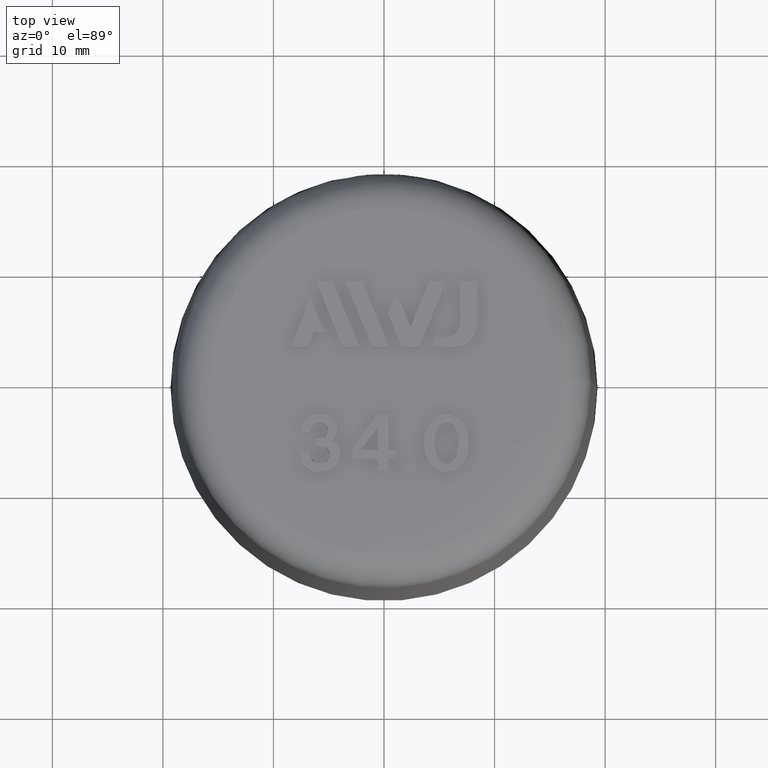
[diagram: clean part render]
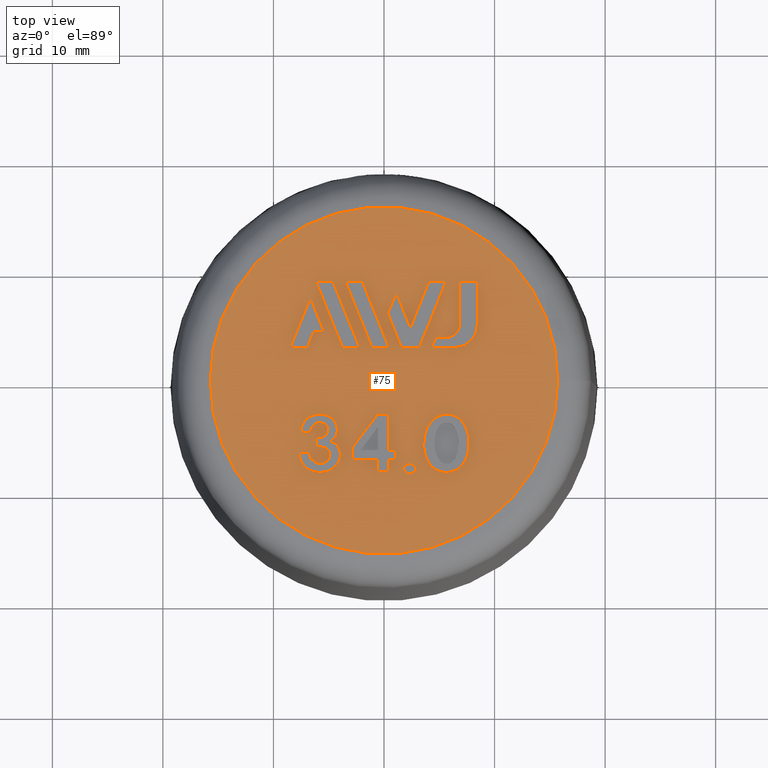
[diagram: same view with one face highlighted and labeled with its STEP entity id]
A machine part, top view. The second image highlights one B-rep face of the part: STEP entity #75.
In plain terms, the highlighted planar face has unit normal (0, 0, -1).
Its self-contained STEP definition (entity closure, byte-faithful):
#75 = ADVANCED_FACE( '', ( #147, #148, #149, #150, #151, #152, #153, #154, #155, #156 ), #157, .F. );
#147 = FACE_BOUND( '', #308, .T. );
#148 = FACE_BOUND( '', #309, .T. );
#149 = FACE_BOUND( '', #310, .T. );
#150 = FACE_BOUND( '', #311, .T. );
#151 = FACE_OUTER_BOUND( '', #312, .T. );
#152 = FACE_BOUND( '', #313, .T. );
#153 = FACE_BOUND( '', #314, .T. );
#154 = FACE_BOUND( '', #315, .T. );
#155 = FACE_BOUND( '', #316, .T. );
#156 = FACE_BOUND( '', #317, .T. );
#157 = PLANE( '', #318 );
#308 = EDGE_LOOP( '', ( #477 ) );
#309 = EDGE_LOOP( '', ( #478, #479, #480, #481, #482, #483, #484, #485 ) );
#310 = EDGE_LOOP( '', ( #486, #487, #488, #489 ) );
#311 = EDGE_LOOP( '', ( #490, #491, #492, #493, #494, #495, #496 ) );
#312 = EDGE_LOOP( '', ( #497 ) );
#313 = EDGE_LOOP( '', ( #498, #499, #500, #501, #502, #503, #504, #505 ) );
#314 = EDGE_LOOP( '', ( #506, #507, #508, #509 ) );
#315 = EDGE_LOOP( '', ( #510, #511, #512, #513, #514 ) );
#316 = EDGE_LOOP( '', ( #515, #516, #517, #518, #519, #520, #521, #522, #523, #524, #525 ) );
#317 = EDGE_LOOP( '', ( #526 ) );
#318 = AXIS2_PLACEMENT_3D( '', #527, #528, #529 );
#477 = ORIENTED_EDGE( '', *, *, #1094, .T. );
#478 = ORIENTED_EDGE( '', *, *, #1095, .T. );
#479 = ORIENTED_EDGE( '', *, *, #1096, .T. );
#480 = ORIENTED_EDGE( '', *, *, #1097, .T. );
#481 = ORIENTED_EDGE( '', *, *, #1098, .T. );
#482 = ORIENTED_EDGE( '', *, *, #1099, .T. );
#483 = ORIENTED_EDGE( '', *, *, #1100, .T. );
#484 = ORIENTED_EDGE( '', *, *, #1101, .T. );
#485 = ORIENTED_EDGE( '', *, *, #1102, .T. );
#486 = ORIENTED_EDGE( '', *, *, #1103, .F. );
#487 = ORIENTED_EDGE( '', *, *, #1104, .F. );
#488 = ORIENTED_EDGE( '', *, *, #1105, .F. );
#489 = ORIENTED_EDGE( '', *, *, #1106, .F. );
#490 = ORIENTED_EDGE( '', *, *, #1107, .F. );
#491 = ORIENTED_EDGE( '', *, *, #1108, .F. );
#492 = ORIENTED_EDGE( '', *, *, #1109, .F. );
#493 = ORIENTED_EDGE( '', *, *, #1110, .F. );
#494 = ORIENTED_EDGE( '', *, *, #1111, .F. );
#495 = ORIENTED_EDGE( '', *, *, #1112, .F. );
#496 = ORIENTED_EDGE( '', *, *, #1113, .F. );
#497 = ORIENTED_EDGE( '', *, *, #1114, .T. );
#498 = ORIENTED_EDGE( '', *, *, #1115, .F. );
#499 = ORIENTED_EDGE( '', *, *, #1116, .F. );
#500 = ORIENTED_EDGE( '', *, *, #1117, .F. );
#501 = ORIENTED_EDGE( '', *, *, #1118, .F. );
#502 = ORIENTED_EDGE( '', *, *, #1119, .F. );
#503 = ORIENTED_EDGE( '', *, *, #1120, .F. );
#504 = ORIENTED_EDGE( '', *, *, #1121, .F. );
#505 = ORIENTED_EDGE( '', *, *, #1122, .F. );
#506 = ORIENTED_EDGE( '', *, *, #1123, .F. );
#507 = ORIENTED_EDGE( '', *, *, #1124, .F. );
#508 = ORIENTED_EDGE( '', *, *, #1125, .F. );
#509 = ORIENTED_EDGE( '', *, *, #1126, .F. );
#510 = ORIENTED_EDGE( '', *, *, #1127, .F. );
#511 = ORIENTED_EDGE( '', *, *, #1128, .F. );
#512 = ORIENTED_EDGE( '', *, *, #1129, .F. );
#513 = ORIENTED_EDGE( '', *, *, #1130, .F. );
#514 = ORIENTED_EDGE( '', *, *, #1131, .F. );
#515 = ORIENTED_EDGE( '', *, *, #1132, .T. );
#516 = ORIENTED_EDGE( '', *, *, #1133, .T. );
#517 = ORIENTED_EDGE( '', *, *, #1134, .T. );
#518 = ORIENTED_EDGE( '', *, *, #1135, .T. );
#519 = ORIENTED_EDGE( '', *, *, #1136, .T. );
#520 = ORIENTED_EDGE( '', *, *, #1137, .T. );
#521 = ORIENTED_EDGE( '', *, *, #1138, .T. );
#522 = ORIENTED_EDGE( '', *, *, #1139, .T. );
#523 = ORIENTED_EDGE( '', *, *, #1140, .T. );
#524 = ORIENTED_EDGE( '', *, *, #1141, .T. );
#525 = ORIENTED_EDGE( '', *, *, #1142, .T. );
#526 = ORIENTED_EDGE( '', *, *, #1143, .T. );
#527 = CARTESIAN_POINT( '', ( -2.26552175457140E-015, 15.7118391006405, 37.0000000000000 ) );
#528 = DIRECTION( '', ( 6.12303176911189E-017, 0.000000000000000, -1.00000000000000 ) );
#529 = DIRECTION( '', ( -1.00000000000000, 0.000000000000000, -6.12303176911189E-017 ) );
#1094 = EDGE_CURVE( '', #1256, #1256, #1257, .T. );
#1095 = EDGE_CURVE( '', #1258, #1259, #1260, .T. );
#1096 = EDGE_CURVE( '', #1259, #1261, #1262, .T. );
#1097 = EDGE_CURVE( '', #1261, #1263, #1264, .T. );
#1098 = EDGE_CURVE( '', #1263, #1265, #1266, .T. );
#1099 = EDGE_CURVE( '', #1265, #1267, #1268, .T. );
#1100 = EDGE_CURVE( '', #1267, #1269, #1270, .T. );
#1101 = EDGE_CURVE( '', #1269, #1271, #1272, .T. );
#1102 = EDGE_CURVE( '', #1271, #1258, #1273, .T. );
#1103 = EDGE_CURVE( '', #1274, #1275, #1276, .T. );
#1104 = EDGE_CURVE( '', #1277, #1274, #1278, .T. );
#1105 = EDGE_CURVE( '', #1279, #1277, #1280, .T. );
#1106 = EDGE_CURVE( '', #1275, #1279, #1281, .T. );
#1107 = EDGE_CURVE( '', #1282, #1283, #1284, .T. );
#1108 = EDGE_CURVE( '', #1285, #1282, #1286, .T. );
#1109 = EDGE_CURVE( '', #1287, #1285, #1288, .T. );
#1110 = EDGE_CURVE( '', #1289, #1287, #1290, .T. );
#1111 = EDGE_CURVE( '', #1291, #1289, #1292, .T. );
#1112 = EDGE_CURVE( '', #1293, #1291, #1294, .T. );
#1113 = EDGE_CURVE( '', #1283, #1293, #1295, .T. );
#1114 = EDGE_CURVE( '', #1296, #1296, #1297, .T. );
#1115 = EDGE_CURVE( '', #1298, #1299, #1300, .T. );
#1116 = EDGE_CURVE( '', #1301, #1298, #1302, .T. );
#1117 = EDGE_CURVE( '', #1303, #1301, #1304, .T. );
#1118 = EDGE_CURVE( '', #1305, #1303, #1306, .T. );
#1119 = EDGE_CURVE( '', #1307, #1305, #1308, .T. );
#1120 = EDGE_CURVE( '', #1309, #1307, #1310, .T. );
#1121 = EDGE_CURVE( '', #1311, #1309, #1312, .T. );
#1122 = EDGE_CURVE( '', #1299, #1311, #1313, .T. );
#1123 = EDGE_CURVE( '', #1314, #1315, #1316, .T. );
#1124 = EDGE_CURVE( '', #1317, #1314, #1318, .T. );
#1125 = EDGE_CURVE( '', #1319, #1317, #1320, .T. );
#1126 = EDGE_CURVE( '', #1315, #1319, #1321, .T. );
#1127 = EDGE_CURVE( '', #1322, #1323, #1324, .T. );
#1128 = EDGE_CURVE( '', #1325, #1322, #1326, .T. );
#1129 = EDGE_CURVE( '', #1327, #1325, #1328, .T. );
#1130 = EDGE_CURVE( '', #1329, #1327, #1330, .T. );
#1131 = EDGE_CURVE( '', #1323, #1329, #1331, .T. );
#1132 = EDGE_CURVE( '', #1332, #1333, #1334, .T. );
#1133 = EDGE_CURVE( '', #1333, #1335, #1336, .T. );
#1134 = EDGE_CURVE( '', #1335, #1337, #1338, .T. );
#1135 = EDGE_CURVE( '', #1337, #1339, #1340, .T. );
#1136 = EDGE_CURVE( '', #1339, #1341, #1342, .T. );
#1137 = EDGE_CURVE( '', #1341, #1343, #1344, .T. );
#1138 = EDGE_CURVE( '', #1343, #1345, #1346, .T. );
#1139 = EDGE_CURVE( '', #1345, #1347, #1348, .T. );
#1140 = EDGE_CURVE( '', #1347, #1349, #1350, .T. );
#1141 = EDGE_CURVE( '', #1349, #1351, #1352, .T. );
#1142 = EDGE_CURVE( '', #1351, #1332, #1353, .T. );
#1143 = EDGE_CURVE( '', #1354, #1354, #1355, .T. );
#1256 = VERTEX_POINT( '', #1530 );
#1257 = B_SPLINE_CURVE_WITH_KNOTS( '', 2, ( #1531, #1532, #1533, #1534, #1535, #1536, #1537, #1538, #1539, #1540, #1541, #1542, #1543, #1544, #1545, #1546, #1547 ), .UNSPECIFIED., .T., .F., ( 3, 2, 2, 2, 2, 2, 2, 2, 3 ), ( 0.000000000000000, 1.00000000000000, 2.00000000000000, 3.00000000000000, 4.00000000000000, 5.00000000000000, 6.00000000000000, 7.00000000000000, 8.00000000000000 ), .UNSPECIFIED. );
#1258 = VERTEX_POINT( '', #1548 );
#1259 = VERTEX_POINT( '', #1549 );
#1260 = B_SPLINE_CURVE_WITH_KNOTS( '', 2, ( #1550, #1551, #1552, #1553, #1554, #1555, #1556, #1557, #1558 ), .UNSPECIFIED., .F., .F., ( 3, 2, 2, 2, 3 ), ( 19.0000000000000, 20.0000000000000, 21.0000000000000, 22.0000000000000, 23.0000000000000 ), .UNSPECIFIED. );
#1261 = VERTEX_POINT( '', #1559 );
#1262 = B_SPLINE_CURVE_WITH_KNOTS( '', 2, ( #1560, #1561, #1562 ), .UNSPECIFIED., .F., .F., ( 3, 3 ), ( 0.000000000000000, 1.00000000000000 ), .UNSPECIFIED. );
#1263 = VERTEX_POINT( '', #1563 );
#1264 = B_SPLINE_CURVE_WITH_KNOTS( '', 2, ( #1564, #1565, #1566 ), .UNSPECIFIED., .F., .F., ( 3, 3 ), ( 1.00000000000000, 2.00000000000000 ), .UNSPECIFIED. );
#1265 = VERTEX_POINT( '', #1567 );
#1266 = B_SPLINE_CURVE_WITH_KNOTS( '', 2, ( #1568, #1569, #1570, #1571, #1572, #1573, #1574, #1575, #1576, #1577, #1578 ), .UNSPECIFIED., .F., .F., ( 3, 2, 2, 2, 2, 3 ), ( 2.00000000000000, 3.00000000000000, 4.00000000000000, 5.00000000000000, 6.00000000000000, 7.00000000000000 ), .UNSPECIFIED. );
#1267 = VERTEX_POINT( '', #1579 );
#1268 = B_SPLINE_CURVE_WITH_KNOTS( '', 2, ( #1580, #1581, #1582 ), .UNSPECIFIED., .F., .F., ( 3, 3 ), ( 7.00000000000000, 8.00000000000000 ), .UNSPECIFIED. );
#1269 = VERTEX_POINT( '', #1583 );
#1270 = B_SPLINE_CURVE_WITH_KNOTS( '', 2, ( #1584, #1585, #1586, #1587, #1588, #1589, #1590, #1591, #1592, #1593, #1594 ), .UNSPECIFIED., .F., .F., ( 3, 2, 2, 2, 2, 3 ), ( 8.00000000000000, 9.00000000000000, 10.0000000000000, 11.0000000000000, 12.0000000000000, 13.0000000000000 ), .UNSPECIFIED. );
#1271 = VERTEX_POINT( '', #1595 );
#1272 = B_SPLINE_CURVE_WITH_KNOTS( '', 2, ( #1596, #1597, #1598 ), .UNSPECIFIED., .F., .F., ( 3, 3 ), ( 13.0000000000000, 14.0000000000000 ), .UNSPECIFIED. );
#1273 = B_SPLINE_CURVE_WITH_KNOTS( '', 2, ( #1599, #1600, #1601, #1602, #1603, #1604, #1605, #1606, #1607, #1608, #1609 ), .UNSPECIFIED., .F., .F., ( 3, 2, 2, 2, 2, 3 ), ( 14.0000000000000, 15.0000000000000, 16.0000000000000, 17.0000000000000, 18.0000000000000, 19.0000000000000 ), .UNSPECIFIED. );
#1274 = VERTEX_POINT( '', #1610 );
#1275 = VERTEX_POINT( '', #1611 );
#1276 = LINE( '', #1612, #1613 );
#1277 = VERTEX_POINT( '', #1614 );
#1278 = LINE( '', #1615, #1616 );
#1279 = VERTEX_POINT( '', #1617 );
#1280 = LINE( '', #1618, #1619 );
#1281 = LINE( '', #1620, #1621 );
#1282 = VERTEX_POINT( '', #1622 );
#1283 = VERTEX_POINT( '', #1623 );
#1284 = LINE( '', #1624, #1625 );
#1285 = VERTEX_POINT( '', #1626 );
#1286 = LINE( '', #1627, #1628 );
#1287 = VERTEX_POINT( '', #1629 );
#1288 = LINE( '', #1630, #1631 );
#1289 = VERTEX_POINT( '', #1632 );
#1290 = LINE( '', #1633, #1634 );
#1291 = VERTEX_POINT( '', #1635 );
#1292 = LINE( '', #1636, #1637 );
#1293 = VERTEX_POINT( '', #1638 );
#1294 = LINE( '', #1639, #1640 );
#1295 = LINE( '', #1641, #1642 );
#1296 = VERTEX_POINT( '', #1643 );
#1297 = CIRCLE( '', #1644, 15.7118391006405 );
#1298 = VERTEX_POINT( '', #1645 );
#1299 = VERTEX_POINT( '', #1646 );
#1300 = LINE( '', #1647, #1648 );
#1301 = VERTEX_POINT( '', #1649 );
#1302 = LINE( '', #1650, #1651 );
#1303 = VERTEX_POINT( '', #1652 );
#1304 = LINE( '', #1653, #1654 );
#1305 = VERTEX_POINT( '', #1655 );
#1306 = CIRCLE( '', #1656, 2.00100000000000 );
#1307 = VERTEX_POINT( '', #1657 );
#1308 = LINE( '', #1658, #1659 );
#1309 = VERTEX_POINT( '', #1660 );
#1310 = LINE( '', #1661, #1662 );
#1311 = VERTEX_POINT( '', #1663 );
#1312 = LINE( '', #1664, #1665 );
#1313 = CIRCLE( '', #1666, 1.33400000000000 );
#1314 = VERTEX_POINT( '', #1667 );
#1315 = VERTEX_POINT( '', #1668 );
#1316 = LINE( '', #1669, #1670 );
#1317 = VERTEX_POINT( '', #1671 );
#1318 = LINE( '', #1672, #1673 );
#1319 = VERTEX_POINT( '', #1674 );
#1320 = LINE( '', #1675, #1676 );
#1321 = LINE( '', #1677, #1678 );
#1322 = VERTEX_POINT( '', #1679 );
#1323 = VERTEX_POINT( '', #1680 );
#1324 = LINE( '', #1681, #1682 );
#1325 = VERTEX_POINT( '', #1683 );
#1326 = LINE( '', #1684, #1685 );
#1327 = VERTEX_POINT( '', #1686 );
#1328 = LINE( '', #1687, #1688 );
#1329 = VERTEX_POINT( '', #1689 );
#1330 = LINE( '', #1690, #1691 );
#1331 = LINE( '', #1692, #1693 );
#1332 = VERTEX_POINT( '', #1694 );
#1333 = VERTEX_POINT( '', #1695 );
#1334 = B_SPLINE_CURVE_WITH_KNOTS( '', 2, ( #1696, #1697, #1698 ), .UNSPECIFIED., .F., .F., ( 3, 3 ), ( 10.0000000000000, 11.0000000000000 ), .UNSPECIFIED. );
#1335 = VERTEX_POINT( '', #1699 );
#1336 = B_SPLINE_CURVE_WITH_KNOTS( '', 2, ( #1700, #1701, #1702 ), .UNSPECIFIED., .F., .F., ( 3, 3 ), ( 0.000000000000000, 1.00000000000000 ), .UNSPECIFIED. );
#1337 = VERTEX_POINT( '', #1703 );
#1338 = B_SPLINE_CURVE_WITH_KNOTS( '', 2, ( #1704, #1705, #1706 ), .UNSPECIFIED., .F., .F., ( 3, 3 ), ( 1.00000000000000, 2.00000000000000 ), .UNSPECIFIED. );
#1339 = VERTEX_POINT( '', #1707 );
#1340 = B_SPLINE_CURVE_WITH_KNOTS( '', 2, ( #1708, #1709, #1710 ), .UNSPECIFIED., .F., .F., ( 3, 3 ), ( 2.00000000000000, 3.00000000000000 ), .UNSPECIFIED. );
#1341 = VERTEX_POINT( '', #1711 );
#1342 = B_SPLINE_CURVE_WITH_KNOTS( '', 2, ( #1712, #1713, #1714 ), .UNSPECIFIED., .F., .F., ( 3, 3 ), ( 3.00000000000000, 4.00000000000000 ), .UNSPECIFIED. );
#1343 = VERTEX_POINT( '', #1715 );
#1344 = B_SPLINE_CURVE_WITH_KNOTS( '', 2, ( #1716, #1717, #1718 ), .UNSPECIFIED., .F., .F., ( 3, 3 ), ( 4.00000000000000, 5.00000000000000 ), .UNSPECIFIED. );
#1345 = VERTEX_POINT( '', #1719 );
#1346 = B_SPLINE_CURVE_WITH_KNOTS( '', 2, ( #1720, #1721, #1722 ), .UNSPECIFIED., .F., .F., ( 3, 3 ), ( 5.00000000000000, 6.00000000000000 ), .UNSPECIFIED. );
#1347 = VERTEX_POINT( '', #1723 );
#1348 = B_SPLINE_CURVE_WITH_KNOTS( '', 2, ( #1724, #1725, #1726 ), .UNSPECIFIED., .F., .F., ( 3, 3 ), ( 6.00000000000000, 7.00000000000000 ), .UNSPECIFIED. );
#1349 = VERTEX_POINT( '', #1727 );
#1350 = B_SPLINE_CURVE_WITH_KNOTS( '', 2, ( #1728, #1729, #1730 ), .UNSPECIFIED., .F., .F., ( 3, 3 ), ( 7.00000000000000, 8.00000000000000 ), .UNSPECIFIED. );
#1351 = VERTEX_POINT( '', #1731 );
#1352 = B_SPLINE_CURVE_WITH_KNOTS( '', 2, ( #1732, #1733, #1734 ), .UNSPECIFIED., .F., .F., ( 3, 3 ), ( 8.00000000000000, 9.00000000000000 ), .UNSPECIFIED. );
#1353 = B_SPLINE_CURVE_WITH_KNOTS( '', 2, ( #1735, #1736, #1737 ), .UNSPECIFIED., .F., .F., ( 3, 3 ), ( 9.00000000000000, 10.0000000000000 ), .UNSPECIFIED. );
#1354 = VERTEX_POINT( '', #1738 );
#1355 = B_SPLINE_CURVE_WITH_KNOTS( '', 2, ( #1739, #1740, #1741, #1742, #1743, #1744, #1745, #1746, #1747, #1748, #1749, #1750, #1751, #1752, #1753, #1754, #1755 ), .UNSPECIFIED., .T., .F., ( 3, 2, 2, 2, 2, 2, 2, 2, 3 ), ( 0.000000000000000, 1.00000000000000, 2.00000000000000, 3.00000000000000, 4.00000000000000, 5.00000000000000, 6.00000000000000, 7.00000000000000, 8.00000000000000 ), .UNSPECIFIED. );
#1530 = CARTESIAN_POINT( '', ( 4.23722462830603, -7.69286845880826, 37.0000000000000 ) );
#1531 = CARTESIAN_POINT( '', ( 4.23722462830603, -7.69286845880826, 37.0000000000000 ) );
#1532 = CARTESIAN_POINT( '', ( 3.63914062500000, -7.04111025007733, 37.0000000000000 ) );
#1533 = CARTESIAN_POINT( '', ( 3.59743015051240, -5.94041717332107, 37.0000000000000 ) );
#1534 = CARTESIAN_POINT( '', ( 3.54914062500000, -4.66611025007733, 37.0000000000000 ) );
#1535 = CARTESIAN_POINT( '', ( 4.17194062500000, -3.83571025007733, 37.0000000000000 ) );
#1536 = CARTESIAN_POINT( '', ( 4.74914062500000, -3.06611025007733, 37.0000000000000 ) );
#1537 = CARTESIAN_POINT( '', ( 5.67914062500000, -3.06611025007733, 37.0000000000000 ) );
#1538 = CARTESIAN_POINT( '', ( 6.54914062500000, -3.06611025007733, 37.0000000000000 ) );
#1539 = CARTESIAN_POINT( '', ( 7.07689023989987, -3.70136441616051, 37.0000000000000 ) );
#1540 = CARTESIAN_POINT( '', ( 7.62914062500000, -4.36611025007733, 37.0000000000000 ) );
#1541 = CARTESIAN_POINT( '', ( 7.68465443793628, -5.46482113110792, 37.0000000000000 ) );
#1542 = CARTESIAN_POINT( '', ( 7.74914062500000, -6.74111025007733, 37.0000000000000 ) );
#1543 = CARTESIAN_POINT( '', ( 7.15282289748817, -7.54384565249711, 37.0000000000000 ) );
#1544 = CARTESIAN_POINT( '', ( 6.57914062500000, -8.31611025007733, 37.0000000000000 ) );
#1545 = CARTESIAN_POINT( '', ( 5.67914062500000, -8.31611025007733, 37.0000000000000 ) );
#1546 = CARTESIAN_POINT( '', ( 4.80914062500000, -8.31611025007733, 37.0000000000000 ) );
#1547 = CARTESIAN_POINT( '', ( 4.23722462830603, -7.69286845880826, 37.0000000000000 ) );
#1548 = CARTESIAN_POINT( '', ( -4.85085937500000, -5.51611025007733, 37.0000000000000 ) );
#1549 = CARTESIAN_POINT( '', ( -7.04786888497845, -7.89930030910478, 37.0000000000000 ) );
#1550 = CARTESIAN_POINT( '', ( -4.85085937500000, -5.51611025007733, 37.0000000000000 ) );
#1551 = CARTESIAN_POINT( '', ( -4.10085937500000, -5.66611025007733, 37.0000000000000 ) );
#1552 = CARTESIAN_POINT( '', ( -3.96525875097504, -6.51361415023334, 37.0000000000000 ) );
#1553 = CARTESIAN_POINT( '', ( -3.86085937500000, -7.16611025007733, 37.0000000000000 ) );
#1554 = CARTESIAN_POINT( '', ( -4.36659133376289, -7.72000715729382, 37.0000000000000 ) );
#1555 = CARTESIAN_POINT( '', ( -4.91085937500000, -8.31611025007733, 37.0000000000000 ) );
#1556 = CARTESIAN_POINT( '', ( -5.75085937500000, -8.31611025007733, 37.0000000000000 ) );
#1557 = CARTESIAN_POINT( '', ( -6.56085937500000, -8.31611025007733, 37.0000000000000 ) );
#1558 = CARTESIAN_POINT( '', ( -7.04786888497845, -7.89930030910478, 37.0000000000000 ) );
#1559 = CARTESIAN_POINT( '', ( -7.67085937500000, -6.49111025007733, 37.0000000000000 ) );
#1560 = CARTESIAN_POINT( '', ( -7.04786888497845, -7.89930030910478, 37.0000000000000 ) );
#1561 = CARTESIAN_POINT( '', ( -7.67085937500000, -7.36611025007733, 37.0000000000000 ) );
#1562 = CARTESIAN_POINT( '', ( -7.67085937500000, -6.49111025007733, 37.0000000000000 ) );
#1563 = CARTESIAN_POINT( '', ( -6.77085937500000, -6.49111025007733, 37.0000000000000 ) );
#1564 = CARTESIAN_POINT( '', ( -7.67085937500000, -6.49111025007733, 37.0000000000000 ) );
#1565 = CARTESIAN_POINT( '', ( -7.22085937500000, -6.49111025007733, 37.0000000000000 ) );
#1566 = CARTESIAN_POINT( '', ( -6.77085937500000, -6.49111025007733, 37.0000000000000 ) );
#1567 = CARTESIAN_POINT( '', ( -6.14085937500000, -5.99111025007733, 37.0000000000000 ) );
#1568 = CARTESIAN_POINT( '', ( -6.77085937500000, -6.49111025007733, 37.0000000000000 ) );
#1569 = CARTESIAN_POINT( '', ( -6.68085937500000, -7.21611025007733, 37.0000000000000 ) );
#1570 = CARTESIAN_POINT( '', ( -6.22851768312762, -7.41066581647405, 37.0000000000000 ) );
#1571 = CARTESIAN_POINT( '', ( -5.75085937500000, -7.61611025007733, 37.0000000000000 ) );
#1572 = CARTESIAN_POINT( '', ( -5.39196218102867, -7.43887706786927, 37.0000000000000 ) );
#1573 = CARTESIAN_POINT( '', ( -4.94085937500000, -7.21611025007733, 37.0000000000000 ) );
#1574 = CARTESIAN_POINT( '', ( -4.90303486368878, -6.81685151956997, 37.0000000000000 ) );
#1575 = CARTESIAN_POINT( '', ( -4.85085937500000, -6.26611025007733, 37.0000000000000 ) );
#1576 = CARTESIAN_POINT( '', ( -5.29936406483642, -6.08735838093962, 37.0000000000000 ) );
#1577 = CARTESIAN_POINT( '', ( -5.54085937500000, -5.99111025007733, 37.0000000000000 ) );
#1578 = CARTESIAN_POINT( '', ( -6.14085937500000, -5.99111025007733, 37.0000000000000 ) );
#1579 = CARTESIAN_POINT( '', ( -6.14085937500000, -5.21611025007733, 37.0000000000000 ) );
#1580 = CARTESIAN_POINT( '', ( -6.14085937500000, -5.99111025007733, 37.0000000000000 ) );
#1581 = CARTESIAN_POINT( '', ( -6.14085937500000, -5.60361025007733, 37.0000000000000 ) );
#1582 = CARTESIAN_POINT( '', ( -6.14085937500000, -5.21611025007733, 37.0000000000000 ) );
#1583 = CARTESIAN_POINT( '', ( -6.71085937500000, -4.71611025007733, 37.0000000000000 ) );
#1584 = CARTESIAN_POINT( '', ( -6.14085937500000, -5.21611025007733, 37.0000000000000 ) );
#1585 = CARTESIAN_POINT( '', ( -5.39085937500000, -5.21611025007733, 37.0000000000000 ) );
#1586 = CARTESIAN_POINT( '', ( -5.18628119046241, -4.86296933629221, 37.0000000000000 ) );
#1587 = CARTESIAN_POINT( '', ( -4.97085937500000, -4.49111025007733, 37.0000000000000 ) );
#1588 = CARTESIAN_POINT( '', ( -5.13934306022073, -4.18477627694873, 37.0000000000000 ) );
#1589 = CARTESIAN_POINT( '', ( -5.30085937500000, -3.89111025007733, 37.0000000000000 ) );
#1590 = CARTESIAN_POINT( '', ( -5.66002197874409, -3.83568392233904, 37.0000000000000 ) );
#1591 = CARTESIAN_POINT( '', ( -6.11085937500000, -3.76611025007733, 37.0000000000000 ) );
#1592 = CARTESIAN_POINT( '', ( -6.38085937500000, -4.04111025007733, 37.0000000000000 ) );
#1593 = CARTESIAN_POINT( '', ( -6.65085937500000, -4.31611025007733, 37.0000000000000 ) );
#1594 = CARTESIAN_POINT( '', ( -6.71085937500000, -4.71611025007733, 37.0000000000000 ) );
#1595 = CARTESIAN_POINT( '', ( -7.52085937500000, -4.71611025007733, 37.0000000000000 ) );
#1596 = CARTESIAN_POINT( '', ( -6.71085937500000, -4.71611025007733, 37.0000000000000 ) );
#1597 = CARTESIAN_POINT( '', ( -7.11585937500000, -4.71611025007733, 37.0000000000000 ) );
#1598 = CARTESIAN_POINT( '', ( -7.52085937500000, -4.71611025007733, 37.0000000000000 ) );
#1599 = CARTESIAN_POINT( '', ( -7.52085937500000, -4.71611025007733, 37.0000000000000 ) );
#1600 = CARTESIAN_POINT( '', ( -7.49085937500000, -3.89111025007733, 37.0000000000000 ) );
#1601 = CARTESIAN_POINT( '', ( -6.98742446417287, -3.45847087358526, 37.0000000000000 ) );
#1602 = CARTESIAN_POINT( '', ( -6.53085937500000, -3.06611025007733, 37.0000000000000 ) );
#1603 = CARTESIAN_POINT( '', ( -5.75085937500000, -3.06611025007733, 37.0000000000000 ) );
#1604 = CARTESIAN_POINT( '', ( -5.15085937500000, -3.06611025007733, 37.0000000000000 ) );
#1605 = CARTESIAN_POINT( '', ( -4.70675399365426, -3.42343641897620, 37.0000000000000 ) );
#1606 = CARTESIAN_POINT( '', ( -4.28085937500000, -3.76611025007733, 37.0000000000000 ) );
#1607 = CARTESIAN_POINT( '', ( -4.23276866752897, -4.31714960651622, 37.0000000000000 ) );
#1608 = CARTESIAN_POINT( '', ( -4.16085937500000, -5.14111025007733, 37.0000000000000 ) );
#1609 = CARTESIAN_POINT( '', ( -4.85085937500000, -5.51611025007733, 37.0000000000000 ) );
#1610 = CARTESIAN_POINT( '', ( -2.21126708100000, 2.99488974992267, 37.0000000000000 ) );
#1611 = CARTESIAN_POINT( '', ( -4.63512173600000, 8.99349822192268, 37.0000000000000 ) );
#1612 = CARTESIAN_POINT( '', ( -2.21126708100000, 2.99488974992267, 37.0000000000000 ) );
#1613 = VECTOR( '', #2147, 1000.00000000000 );
#1614 = CARTESIAN_POINT( '', ( -3.76123767900001, 2.99488974992267, 37.0000000000000 ) );
#1615 = CARTESIAN_POINT( '', ( -3.76123767900000, 2.99488974992267, 37.0000000000000 ) );
#1616 = VECTOR( '', #2148, 1000.00000000000 );
#1617 = CARTESIAN_POINT( '', ( -6.18475149700001, 8.99349822192268, 37.0000000000000 ) );
#1618 = CARTESIAN_POINT( '', ( -6.18475149700001, 8.99349822192268, 37.0000000000000 ) );
#1619 = VECTOR( '', #2149, 1000.00000000000 );
#1620 = CARTESIAN_POINT( '', ( -4.63512173600000, 8.99349822192268, 37.0000000000000 ) );
#1621 = VECTOR( '', #2150, 1000.00000000000 );
#1622 = CARTESIAN_POINT( '', ( 5.63160639600000, 8.99349822192268, 37.0000000000000 ) );
#1623 = CARTESIAN_POINT( '', ( 4.08150506599999, 8.99349822192268, 37.0000000000000 ) );
#1624 = CARTESIAN_POINT( '', ( 5.63160639600000, 8.99349822192268, 37.0000000000000 ) );
#1625 = VECTOR( '', #2151, 1000.00000000000 );
#1626 = CARTESIAN_POINT( '', ( 3.20813259799999, 2.99488974992267, 37.0000000000000 ) );
#1627 = CARTESIAN_POINT( '', ( 3.20813259799999, 2.99488974992267, 37.0000000000000 ) );
#1628 = VECTOR( '', #2152, 1000.00000000000 );
#1629 = CARTESIAN_POINT( '', ( 1.56953170700000, 2.99488974992267, 37.0000000000000 ) );
#1630 = CARTESIAN_POINT( '', ( 1.56953170700000, 2.99488974992267, 37.0000000000000 ) );
#1631 = VECTOR( '', #2153, 1000.00000000000 );
#1632 = CARTESIAN_POINT( '', ( 0.334562530999998, 6.05101238092269, 37.0000000000000 ) );
#1633 = CARTESIAN_POINT( '', ( 0.334562531000001, 6.05101238092269, 37.0000000000000 ) );
#1634 = VECTOR( '', #2154, 1000.00000000000 );
#1635 = CARTESIAN_POINT( '', ( 1.10961319600000, 7.96966589492268, 37.0000000000000 ) );
#1636 = CARTESIAN_POINT( '', ( 1.10961319599999, 7.96966589492268, 37.0000000000000 ) );
#1637 = VECTOR( '', #2155, 1000.00000000000 );
#1638 = CARTESIAN_POINT( '', ( 2.38866173400000, 4.80405588092268, 37.0000000000000 ) );
#1639 = CARTESIAN_POINT( '', ( 2.38866173400000, 4.80405588092268, 37.0000000000000 ) );
#1640 = VECTOR( '', #2156, 1000.00000000000 );
#1641 = CARTESIAN_POINT( '', ( 4.08150506599999, 8.99349822192268, 37.0000000000000 ) );
#1642 = VECTOR( '', #2157, 1000.00000000000 );
#1643 = CARTESIAN_POINT( '', ( 15.7118391006405, 0.000000000000000, 37.0000000000000 ) );
#1644 = AXIS2_PLACEMENT_3D( '', #2158, #2159, #2160 );
#1645 = CARTESIAN_POINT( '', ( 6.86196526799999, 8.99349822192268, 37.0000000000000 ) );
#1646 = CARTESIAN_POINT( '', ( 6.86196526800000, 5.20120102092268, 37.0000000000000 ) );
#1647 = CARTESIAN_POINT( '', ( 6.86196526799999, 8.99349822192268, 37.0000000000000 ) );
#1648 = VECTOR( '', #2161, 1000.00000000000 );
#1649 = CARTESIAN_POINT( '', ( 8.42964605000000, 8.99349822192268, 37.0000000000000 ) );
#1650 = CARTESIAN_POINT( '', ( 8.42964605000000, 8.99349822192268, 37.0000000000000 ) );
#1651 = VECTOR( '', #2162, 1000.00000000000 );
#1652 = CARTESIAN_POINT( '', ( 8.42964605000000, 4.99588974992267, 37.0000000000000 ) );
#1653 = CARTESIAN_POINT( '', ( 8.42964605000000, 4.99588974992267, 37.0000000000000 ) );
#1654 = VECTOR( '', #2163, 1000.00000000000 );
#1655 = CARTESIAN_POINT( '', ( 6.42864605000000, 2.99488974992267, 37.0000000000000 ) );
#1656 = AXIS2_PLACEMENT_3D( '', #2164, #2165, #2166 );
#1657 = CARTESIAN_POINT( '', ( 4.32347198900000, 2.99488974992267, 37.0000000000000 ) );
#1658 = CARTESIAN_POINT( '', ( 4.32347198900000, 2.99488974992267, 37.0000000000000 ) );
#1659 = VECTOR( '', #2167, 1000.00000000000 );
#1660 = CARTESIAN_POINT( '', ( 4.67590811900000, 3.86720102092268, 37.0000000000000 ) );
#1661 = CARTESIAN_POINT( '', ( 4.67590811900000, 3.86720102092268, 37.0000000000000 ) );
#1662 = VECTOR( '', #2168, 1000.00000000000 );
#1663 = CARTESIAN_POINT( '', ( 5.52796526800000, 3.86720102092268, 37.0000000000000 ) );
#1664 = CARTESIAN_POINT( '', ( 5.52796526800000, 3.86720102092268, 37.0000000000000 ) );
#1665 = VECTOR( '', #2169, 1000.00000000000 );
#1666 = AXIS2_PLACEMENT_3D( '', #2170, #2171, #2172 );
#1667 = CARTESIAN_POINT( '', ( 0.454192982999999, 2.99488974992267, 37.0000000000000 ) );
#1668 = CARTESIAN_POINT( '', ( -1.96966167200001, 8.99349822192268, 37.0000000000000 ) );
#1669 = CARTESIAN_POINT( '', ( 0.454192982999999, 2.99488974992267, 37.0000000000000 ) );
#1670 = VECTOR( '', #2173, 1000.00000000000 );
#1671 = CARTESIAN_POINT( '', ( -1.09588833700001, 2.99488974992267, 37.0000000000000 ) );
#1672 = CARTESIAN_POINT( '', ( -1.09588833700000, 2.99488974992267, 37.0000000000000 ) );
#1673 = VECTOR( '', #2174, 1000.00000000000 );
#1674 = CARTESIAN_POINT( '', ( -3.51974232500000, 8.99349822192268, 37.0000000000000 ) );
#1675 = CARTESIAN_POINT( '', ( -3.51974232500000, 8.99349822192268, 37.0000000000000 ) );
#1676 = VECTOR( '', #2175, 1000.00000000000 );
#1677 = CARTESIAN_POINT( '', ( -1.96966167200001, 8.99349822192268, 37.0000000000000 ) );
#1678 = VECTOR( '', #2176, 1000.00000000000 );
#1679 = CARTESIAN_POINT( '', ( -8.47575576000001, 2.99488974992267, 37.0000000000000 ) );
#1680 = CARTESIAN_POINT( '', ( -6.92612599900000, 2.99488974992267, 37.0000000000000 ) );
#1681 = CARTESIAN_POINT( '', ( -8.47575576000001, 2.99488974992267, 37.0000000000000 ) );
#1682 = VECTOR( '', #2177, 1000.00000000000 );
#1683 = CARTESIAN_POINT( '', ( -6.65884242400001, 7.49248809192267, 37.0000000000000 ) );
#1684 = CARTESIAN_POINT( '', ( -6.65884242400001, 7.49248809192267, 37.0000000000000 ) );
#1685 = VECTOR( '', #2178, 1000.00000000000 );
#1686 = CARTESIAN_POINT( '', ( -5.40203366700000, 4.38033946192267, 37.0000000000000 ) );
#1687 = CARTESIAN_POINT( '', ( -5.40203366700000, 4.38033946192267, 37.0000000000000 ) );
#1688 = VECTOR( '', #2179, 1000.00000000000 );
#1689 = CARTESIAN_POINT( '', ( -6.36596072300000, 4.38033946192267, 37.0000000000000 ) );
#1690 = CARTESIAN_POINT( '', ( -6.36596072300000, 4.38033946192267, 37.0000000000000 ) );
#1691 = VECTOR( '', #2180, 1000.00000000000 );
#1692 = CARTESIAN_POINT( '', ( -6.92612599900000, 2.99488974992267, 37.0000000000000 ) );
#1693 = VECTOR( '', #2181, 1000.00000000000 );
#1694 = CARTESIAN_POINT( '', ( -0.560859375000001, -7.14111025007733, 37.0000000000000 ) );
#1695 = CARTESIAN_POINT( '', ( -2.87085937500000, -7.14111025007733, 37.0000000000000 ) );
#1696 = CARTESIAN_POINT( '', ( -0.560859375000001, -7.14111025007733, 37.0000000000000 ) );
#1697 = CARTESIAN_POINT( '', ( -1.71585937500000, -7.14111025007733, 37.0000000000000 ) );
#1698 = CARTESIAN_POINT( '', ( -2.87085937500000, -7.14111025007733, 37.0000000000000 ) );
#1699 = CARTESIAN_POINT( '', ( -2.87085937500000, -6.06611025007733, 37.0000000000000 ) );
#1700 = CARTESIAN_POINT( '', ( -2.87085937500000, -7.14111025007733, 37.0000000000000 ) );
#1701 = CARTESIAN_POINT( '', ( -2.87085937500000, -6.60361025007733, 37.0000000000000 ) );
#1702 = CARTESIAN_POINT( '', ( -2.87085937500000, -6.06611025007733, 37.0000000000000 ) );
#1703 = CARTESIAN_POINT( '', ( -0.620859375000001, -3.11611025007733, 37.0000000000000 ) );
#1704 = CARTESIAN_POINT( '', ( -2.87085937500000, -6.06611025007733, 37.0000000000000 ) );
#1705 = CARTESIAN_POINT( '', ( -1.74585937500000, -4.59111025007733, 37.0000000000000 ) );
#1706 = CARTESIAN_POINT( '', ( -0.620859375000001, -3.11611025007733, 37.0000000000000 ) );
#1707 = CARTESIAN_POINT( '', ( 0.399140625000000, -3.11611025007733, 37.0000000000000 ) );
#1708 = CARTESIAN_POINT( '', ( -0.620859375000001, -3.11611025007733, 37.0000000000000 ) );
#1709 = CARTESIAN_POINT( '', ( -0.110859374999999, -3.11611025007733, 37.0000000000000 ) );
#1710 = CARTESIAN_POINT( '', ( 0.399140625000000, -3.11611025007733, 37.0000000000000 ) );
#1711 = CARTESIAN_POINT( '', ( 0.399140624999999, -6.34111025007733, 37.0000000000000 ) );
#1712 = CARTESIAN_POINT( '', ( 0.399140625000000, -3.11611025007733, 37.0000000000000 ) );
#1713 = CARTESIAN_POINT( '', ( 0.399140625000000, -4.72861025007733, 37.0000000000000 ) );
#1714 = CARTESIAN_POINT( '', ( 0.399140624999999, -6.34111025007733, 37.0000000000000 ) );
#1715 = CARTESIAN_POINT( '', ( 1.08914062500000, -6.34111025007733, 37.0000000000000 ) );
#1716 = CARTESIAN_POINT( '', ( 0.399140624999999, -6.34111025007733, 37.0000000000000 ) );
#1717 = CARTESIAN_POINT( '', ( 0.744140624999999, -6.34111025007733, 37.0000000000000 ) );
#1718 = CARTESIAN_POINT( '', ( 1.08914062500000, -6.34111025007733, 37.0000000000000 ) );
#1719 = CARTESIAN_POINT( '', ( 1.08914062500000, -7.14111025007733, 37.0000000000000 ) );
#1720 = CARTESIAN_POINT( '', ( 1.08914062500000, -6.34111025007733, 37.0000000000000 ) );
#1721 = CARTESIAN_POINT( '', ( 1.08914062500000, -6.74111025007733, 37.0000000000000 ) );
#1722 = CARTESIAN_POINT( '', ( 1.08914062500000, -7.14111025007733, 37.0000000000000 ) );
#1723 = CARTESIAN_POINT( '', ( 0.399140624999999, -7.14111025007733, 37.0000000000000 ) );
#1724 = CARTESIAN_POINT( '', ( 1.08914062500000, -7.14111025007733, 37.0000000000000 ) );
#1725 = CARTESIAN_POINT( '', ( 0.744140624999999, -7.14111025007733, 37.0000000000000 ) );
#1726 = CARTESIAN_POINT( '', ( 0.399140624999999, -7.14111025007733, 37.0000000000000 ) );
#1727 = CARTESIAN_POINT( '', ( 0.399140624999999, -8.26611025007733, 37.0000000000000 ) );
#1728 = CARTESIAN_POINT( '', ( 0.399140624999999, -7.14111025007733, 37.0000000000000 ) );
#1729 = CARTESIAN_POINT( '', ( 0.399140624999999, -7.70361025007733, 37.0000000000000 ) );
#1730 = CARTESIAN_POINT( '', ( 0.399140624999999, -8.26611025007733, 37.0000000000000 ) );
#1731 = CARTESIAN_POINT( '', ( -0.560859375000001, -8.26611025007733, 37.0000000000000 ) );
#1732 = CARTESIAN_POINT( '', ( 0.399140624999999, -8.26611025007733, 37.0000000000000 ) );
#1733 = CARTESIAN_POINT( '', ( -0.0808593750000003, -8.26611025007733, 37.0000000000000 ) );
#1734 = CARTESIAN_POINT( '', ( -0.560859375000001, -8.26611025007733, 37.0000000000000 ) );
#1735 = CARTESIAN_POINT( '', ( -0.560859375000001, -8.26611025007733, 37.0000000000000 ) );
#1736 = CARTESIAN_POINT( '', ( -0.560859375000001, -7.70361025007733, 37.0000000000000 ) );
#1737 = CARTESIAN_POINT( '', ( -0.560859375000001, -7.14111025007733, 37.0000000000000 ) );
#1738 = CARTESIAN_POINT( '', ( 2.31914062500000, -7.54111025007733, 37.0000000000000 ) );
#1739 = CARTESIAN_POINT( '', ( 2.31914062500000, -7.54111025007733, 37.0000000000000 ) );
#1740 = CARTESIAN_POINT( '', ( 2.52914062500000, -7.54111025007733, 37.0000000000000 ) );
#1741 = CARTESIAN_POINT( '', ( 2.70914062500000, -7.69111025007733, 37.0000000000000 ) );
#1742 = CARTESIAN_POINT( '', ( 2.85914062500000, -7.81611025007733, 37.0000000000000 ) );
#1743 = CARTESIAN_POINT( '', ( 2.85914062500000, -7.99111025007733, 37.0000000000000 ) );
#1744 = CARTESIAN_POINT( '', ( 2.85914062500000, -8.16611025007733, 37.0000000000000 ) );
#1745 = CARTESIAN_POINT( '', ( 2.70914062500000, -8.29111025007733, 37.0000000000000 ) );
#1746 = CARTESIAN_POINT( '', ( 2.52914062500000, -8.44111025007733, 37.0000000000000 ) );
#1747 = CARTESIAN_POINT( '', ( 2.31914062500000, -8.44111025007733, 37.0000000000000 ) );
#1748 = CARTESIAN_POINT( '', ( 2.10914062500000, -8.44111025007733, 37.0000000000000 ) );
#1749 = CARTESIAN_POINT( '', ( 1.92914062500000, -8.29111025007733, 37.0000000000000 ) );
#1750 = CARTESIAN_POINT( '', ( 1.77914062500000, -8.16611025007733, 37.0000000000000 ) );
#1751 = CARTESIAN_POINT( '', ( 1.77914062500000, -7.99111025007733, 37.0000000000000 ) );
#1752 = CARTESIAN_POINT( '', ( 1.77914062500000, -7.81611025007733, 37.0000000000000 ) );
#1753 = CARTESIAN_POINT( '', ( 1.92914062500000, -7.69111025007733, 37.0000000000000 ) );
#1754 = CARTESIAN_POINT( '', ( 2.10914062500000, -7.54111025007733, 37.0000000000000 ) );
#1755 = CARTESIAN_POINT( '', ( 2.31914062500000, -7.54111025007733, 37.0000000000000 ) );
#2147 = DIRECTION( '', ( -0.374641075834904, 0.927169922019295, -6.88181762805413E-017 ) );
#2148 = DIRECTION( '', ( 1.00000000000000, -6.12303176911189E-017, 1.83690953073357E-016 ) );
#2149 = DIRECTION( '', ( 0.374595787424495, -0.927188220397468, 6.88098572092699E-017 ) );
#2150 = DIRECTION( '', ( -1.00000000000000, 6.12303176911189E-017, -1.83690953073357E-016 ) );
#2151 = DIRECTION( '', ( -1.00000000000000, 6.69494841509799E-017, -1.83690953073357E-016 ) );
#2152 = DIRECTION( '', ( 0.374590469627021, 0.927190368837278, 6.88088803779836E-017 ) );
#2153 = DIRECTION( '', ( 1.00000000000000, -1.14383329197221E-017, 1.83690953073357E-016 ) );
#2154 = DIRECTION( '', ( 0.374662791989133, -0.927161146888127, 6.88221653416086E-017 ) );
#2155 = DIRECTION( '', ( -0.374550228315492, -0.927206625552694, -6.88014884131161E-017 ) );
#2156 = DIRECTION( '', ( -0.374621466961798, 0.927177845125405, -6.88145743079516E-017 ) );
#2157 = DIRECTION( '', ( -0.374644407000048, -0.927168575990139, -6.88187881854414E-017 ) );
#2158 = CARTESIAN_POINT( '', ( -2.26552175457140E-015, 0.000000000000000, 37.0000000000000 ) );
#2159 = DIRECTION( '', ( -6.12303176911189E-017, 0.000000000000000, 1.00000000000000 ) );
#2160 = DIRECTION( '', ( 1.00000000000000, 0.000000000000000, 6.12303176911189E-017 ) );
#2161 = DIRECTION( '', ( -6.69494841509799E-017, -1.00000000000000, -4.79971094235239E-033 ) );
#2162 = DIRECTION( '', ( -1.00000000000000, 6.69494841509799E-017, -1.83690953073357E-016 ) );
#2163 = DIRECTION( '', ( 6.69494841509799E-017, 1.00000000000000, 4.79971094235239E-033 ) );
#2164 = CARTESIAN_POINT( '', ( 6.42864605000000, 4.99588974992267, 37.0000000000000 ) );
#2165 = DIRECTION( '', ( -6.12303176911189E-017, -5.46835240677393E-048, 1.00000000000000 ) );
#2166 = DIRECTION( '', ( 1.00000000000000, -2.12069728206105E-016, 6.12303176911189E-017 ) );
#2167 = DIRECTION( '', ( 1.00000000000000, -6.69494841509799E-017, 1.83690953073357E-016 ) );
#2168 = DIRECTION( '', ( -0.374606136016172, -0.927184039368147, -6.88117581519382E-017 ) );
#2169 = DIRECTION( '', ( -1.00000000000000, 6.69494841509799E-017, -1.83690953073357E-016 ) );
#2170 = CARTESIAN_POINT( '', ( 5.52796526799999, 5.20120102092268, 37.0000000000000 ) );
#2171 = DIRECTION( '', ( 6.12303176911189E-017, 0.000000000000000, -1.00000000000000 ) );
#2172 = DIRECTION( '', ( 1.00000000000000, 2.21394408719632E-016, 6.12303176911189E-017 ) );
#2173 = DIRECTION( '', ( -0.374641075834904, 0.927169922019295, -6.88181762805413E-017 ) );
#2174 = DIRECTION( '', ( 1.00000000000000, -6.12303176911189E-017, 1.83690953073357E-016 ) );
#2175 = DIRECTION( '', ( 0.374640987210495, -0.927169957829709, 6.88181600010391E-017 ) );
#2176 = DIRECTION( '', ( -1.00000000000000, 6.12303176911187E-017, -1.83690953073357E-016 ) );
#2177 = DIRECTION( '', ( 1.00000000000000, -6.69494841509799E-017, 1.83690953073357E-016 ) );
#2178 = DIRECTION( '', ( -0.374565060835224, -0.927200633736574, -6.88042130128021E-017 ) );
#2179 = DIRECTION( '', ( -0.374457798873769, 0.927243957576760, -6.87845099608738E-017 ) );
#2180 = DIRECTION( '', ( 1.00000000000000, -1.14383329197219E-017, 1.83690953073357E-016 ) );
#2181 = DIRECTION( '', ( 0.374840859640758, 0.927089170438193, 6.88548747582471E-017 ) );